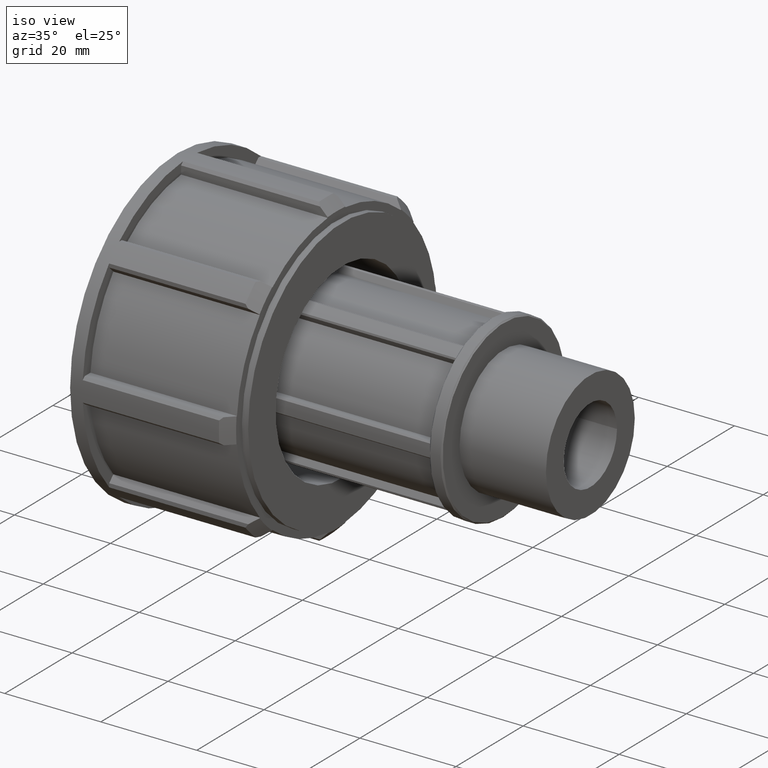
[diagram: clean part render]
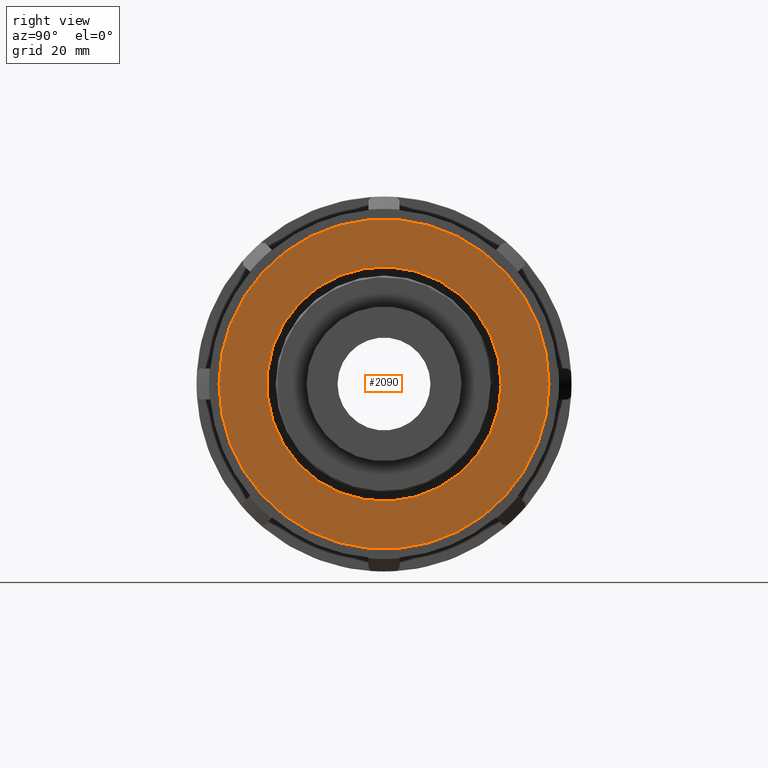
[diagram: tour spotlight — one face highlighted and labeled with its STEP entity id]
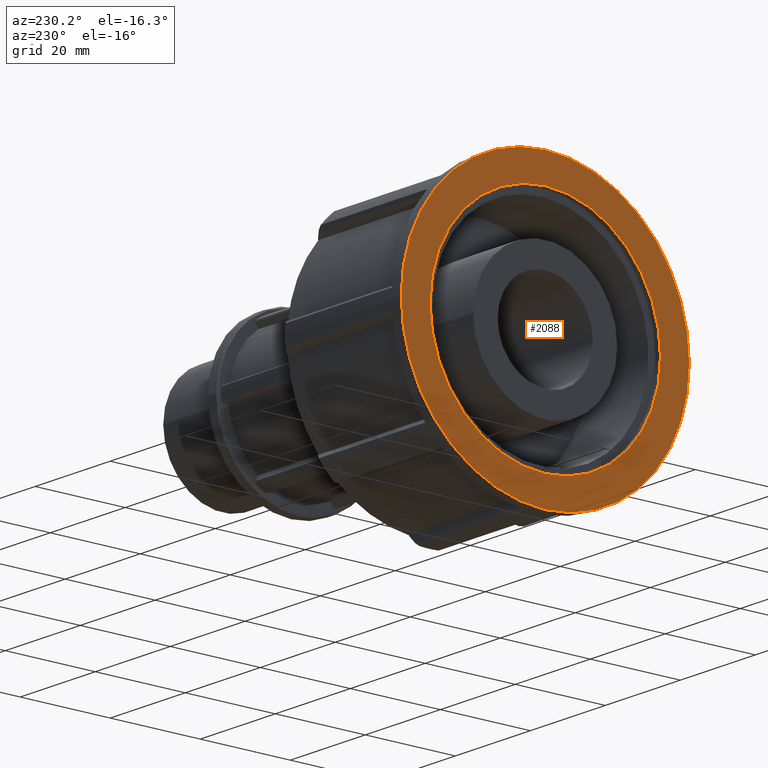
[diagram: tour spotlight — one face highlighted and labeled with its STEP entity id]
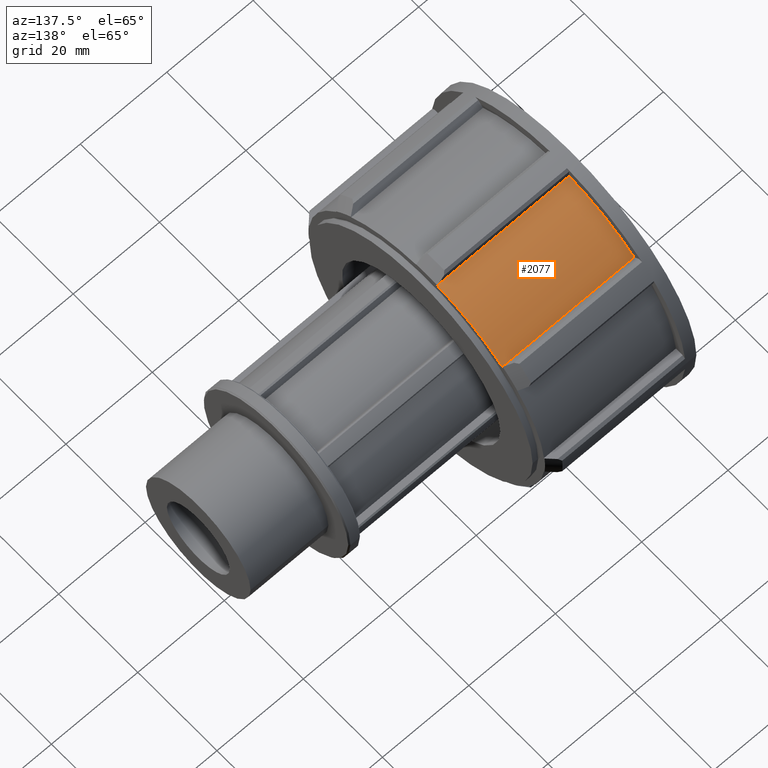
[diagram: tour spotlight — one face highlighted and labeled with its STEP entity id]
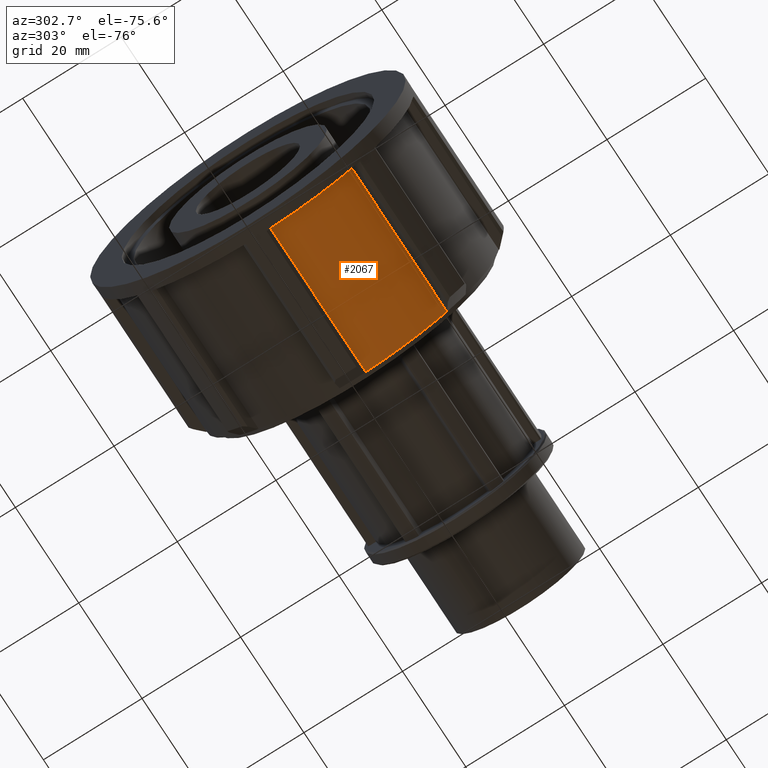
[diagram: tour spotlight — one face highlighted and labeled with its STEP entity id]
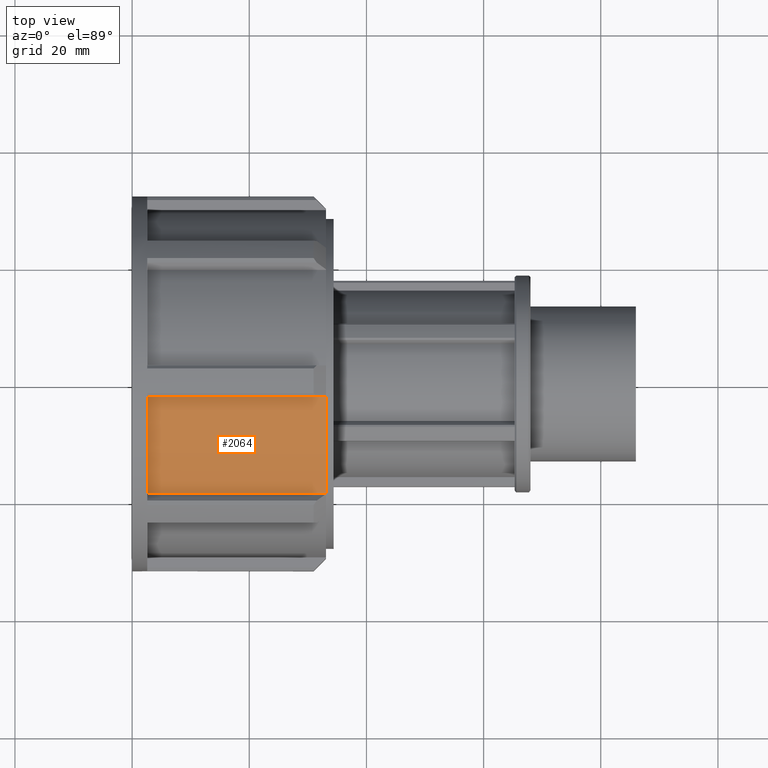
[diagram: tour spotlight — one face highlighted and labeled with its STEP entity id]
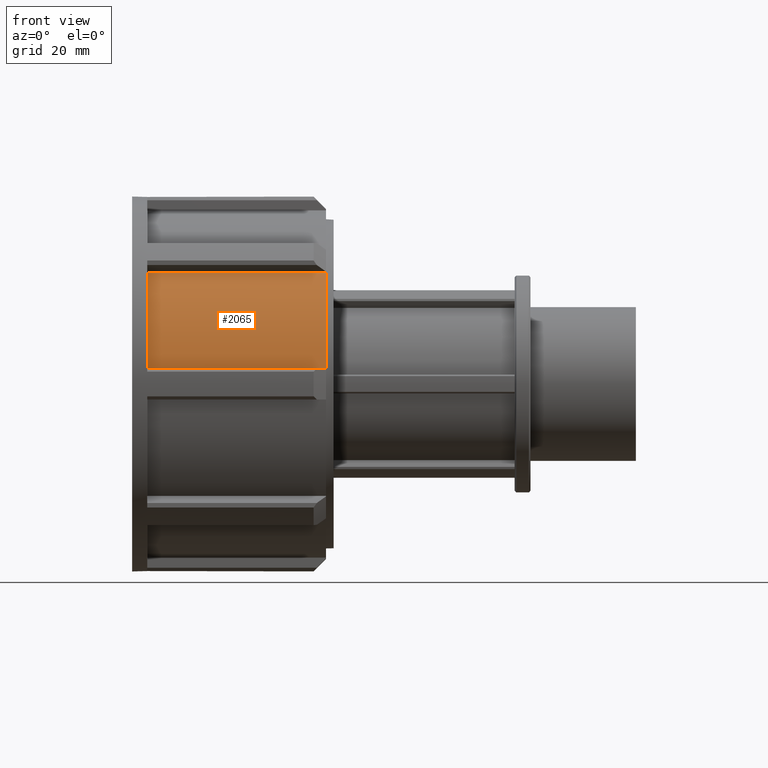
[diagram: tour spotlight — one face highlighted and labeled with its STEP entity id]
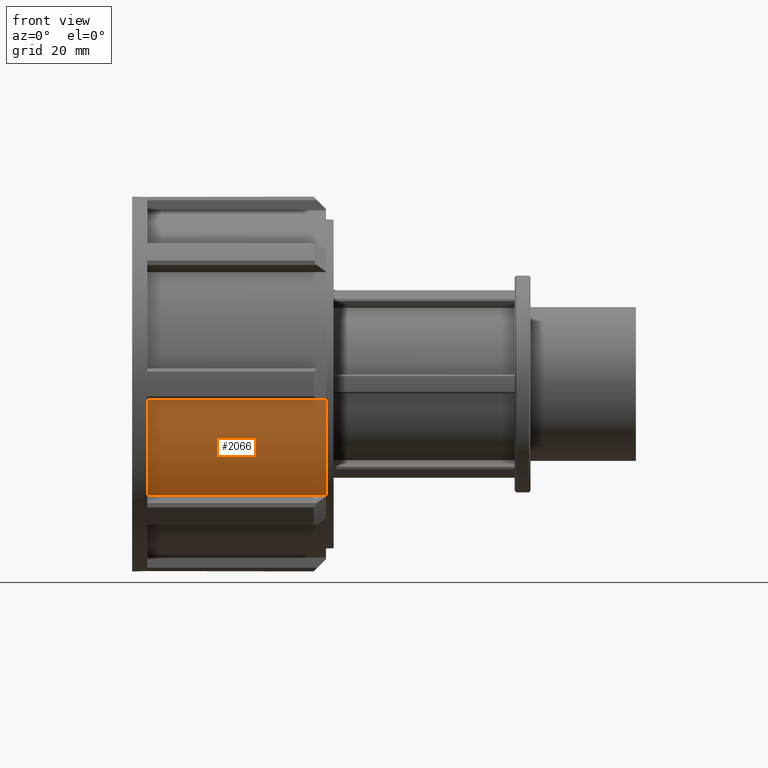
[diagram: tour spotlight — one face highlighted and labeled with its STEP entity id]
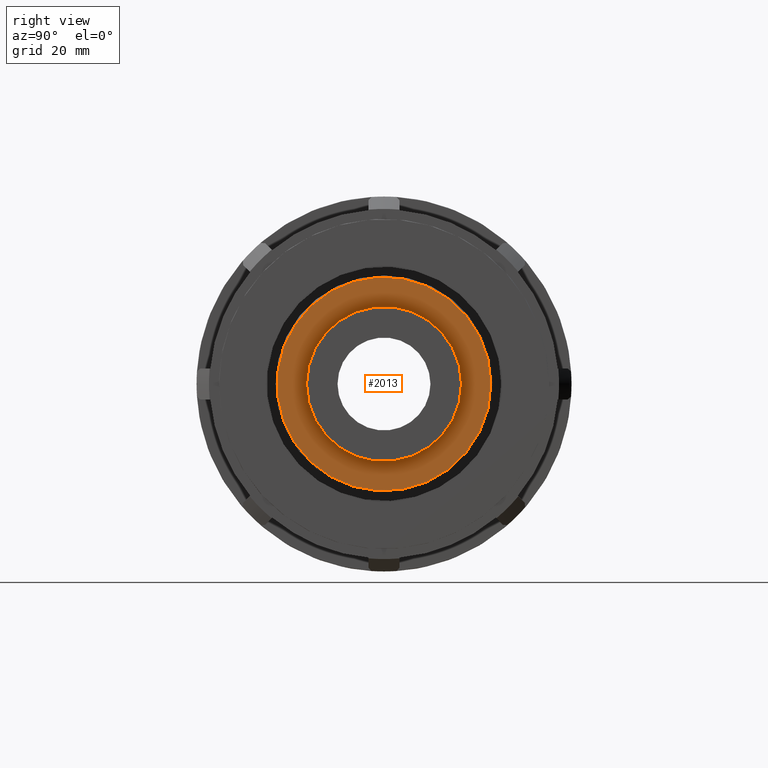
[diagram: tour spotlight — one face highlighted and labeled with its STEP entity id]
A machine part: a face-by-face anatomy tour. The part has 115 B-rep faces; the first image is the clean iso view, then the 8 largest visible faces are spotlighted one at a time (largest first), each with its STEP entity span.

Face 1 — right view, entity #2090. In plain terms, the highlighted planar face has unit normal (1, 0, 0).
Definition (entity closure, byte-faithful):
#77=FACE_BOUND('',#442,.T.);
#163=CIRCLE('',#2289,28.16);
#164=CIRCLE('',#2291,20.);
#307=FACE_OUTER_BOUND('',#441,.T.);
#441=EDGE_LOOP('',(#1897));
#442=EDGE_LOOP('',(#1898));
#1011=VERTEX_POINT('',#3550);
#1012=VERTEX_POINT('',#3553);
#1308=EDGE_CURVE('',#1011,#1011,#163,.T.);
#1309=EDGE_CURVE('',#1012,#1012,#164,.T.);
#1897=ORIENTED_EDGE('',*,*,#1308,.T.);
#1898=ORIENTED_EDGE('',*,*,#1309,.F.);
#1977=PLANE('',#2290);
#2090=ADVANCED_FACE('',(#307,#77),#1977,.T.);
#2289=AXIS2_PLACEMENT_3D('',#3551,#2864,#2865);
#2290=AXIS2_PLACEMENT_3D('',#3552,#2866,#2867);
#2291=AXIS2_PLACEMENT_3D('',#3554,#2868,#2869);
#2864=DIRECTION('center_axis',(1.,0.,0.));
#2865=DIRECTION('ref_axis',(0.,0.,-1.));
#2866=DIRECTION('center_axis',(1.,0.,0.));
#2867=DIRECTION('ref_axis',(0.,0.,-1.));
#2868=DIRECTION('center_axis',(1.,0.,0.));
#2869=DIRECTION('ref_axis',(0.,0.,-1.));
#3550=CARTESIAN_POINT('',(34.4,28.16,0.));
#3551=CARTESIAN_POINT('Origin',(34.4,0.,0.));
#3552=CARTESIAN_POINT('Origin',(34.4,20.,0.));
#3553=CARTESIAN_POINT('',(34.4,20.,0.));
#3554=CARTESIAN_POINT('Origin',(34.4,0.,0.));

Face 2 — auxiliary view, entity #2088. In plain terms, the highlighted planar face has unit normal (-1, 0, 0).
Definition (entity closure, byte-faithful):
#75=FACE_BOUND('',#438,.T.);
#113=CIRCLE('',#2173,32.);
#162=CIRCLE('',#2286,25.6);
#305=FACE_OUTER_BOUND('',#437,.T.);
#437=EDGE_LOOP('',(#1893));
#438=EDGE_LOOP('',(#1894));
#895=VERTEX_POINT('',#3141);
#1010=VERTEX_POINT('',#3546);
#1137=EDGE_CURVE('',#895,#895,#113,.T.);
#1307=EDGE_CURVE('',#1010,#1010,#162,.T.);
#1893=ORIENTED_EDGE('',*,*,#1137,.F.);
#1894=ORIENTED_EDGE('',*,*,#1307,.T.);
#1976=PLANE('',#2287);
#2088=ADVANCED_FACE('',(#305,#75),#1976,.T.);
#2173=AXIS2_PLACEMENT_3D('',#3142,#2539,#2540);
#2286=AXIS2_PLACEMENT_3D('',#3547,#2858,#2859);
#2287=AXIS2_PLACEMENT_3D('',#3548,#2860,#2861);
#2539=DIRECTION('center_axis',(1.,0.,0.));
#2540=DIRECTION('ref_axis',(0.,0.,-1.));
#2858=DIRECTION('center_axis',(1.,0.,0.));
#2859=DIRECTION('ref_axis',(0.,0.,-1.));
#2860=DIRECTION('center_axis',(-1.,0.,0.));
#2861=DIRECTION('ref_axis',(0.,0.,1.));
#3141=CARTESIAN_POINT('',(0.,32.,0.));
#3142=CARTESIAN_POINT('Origin',(0.,0.,0.));
#3546=CARTESIAN_POINT('',(0.,25.6,0.));
#3547=CARTESIAN_POINT('Origin',(0.,0.,0.));
#3548=CARTESIAN_POINT('Origin',(0.,32.,0.));

Face 3 — auxiliary view, entity #2077. In plain terms, the highlighted cylindrical surface (partial cylindrical patch) has radius 29.76 mm, axis along (1, 0, 0).
Definition (entity closure, byte-faithful):
#149=CIRCLE('',#2257,29.76);
#152=CIRCLE('',#2266,29.76);
#187=CYLINDRICAL_SURFACE('',#2265,29.76);
#294=FACE_OUTER_BOUND('',#417,.T.);
#417=EDGE_LOOP('',(#1865,#1866,#1867,#1868));
#554=LINE('',#3210,#734);
#627=LINE('',#3514,#807);
#734=VECTOR('',#2593,30.53);
#807=VECTOR('',#2814,30.53);
#926=VERTEX_POINT('',#3207);
#927=VERTEX_POINT('',#3209);
#993=VERTEX_POINT('',#3481);
#1000=VERTEX_POINT('',#3513);
#1171=EDGE_CURVE('',#927,#926,#554,.T.);
#1283=EDGE_CURVE('',#927,#993,#149,.T.);
#1295=EDGE_CURVE('',#1000,#993,#627,.T.);
#1297=EDGE_CURVE('',#926,#1000,#152,.T.);
#1865=ORIENTED_EDGE('',*,*,#1171,.T.);
#1866=ORIENTED_EDGE('',*,*,#1297,.T.);
#1867=ORIENTED_EDGE('',*,*,#1295,.T.);
#1868=ORIENTED_EDGE('',*,*,#1283,.F.);
#2077=ADVANCED_FACE('',(#294),#187,.T.);
#2257=AXIS2_PLACEMENT_3D('',#3482,#2793,#2794);
#2265=AXIS2_PLACEMENT_3D('',#3516,#2816,#2817);
#2266=AXIS2_PLACEMENT_3D('',#3517,#2818,#2819);
#2593=DIRECTION('',(-1.,0.,0.));
#2793=DIRECTION('center_axis',(1.,0.,0.));
#2794=DIRECTION('ref_axis',(0.,0.,-1.));
#2814=DIRECTION('',(1.,0.,0.));
#2816=DIRECTION('center_axis',(1.,0.,0.));
#2817=DIRECTION('ref_axis',(0.,1.,0.));
#2818=DIRECTION('center_axis',(1.,0.,0.));
#2819=DIRECTION('ref_axis',(0.,0.,-1.));
#3207=CARTESIAN_POINT('',(2.58,19.0906149025855,22.8299369828561));
#3209=CARTESIAN_POINT('',(33.11,19.0906149025854,22.8299369828561));
#3210=CARTESIAN_POINT('',(17.845,19.0906149025855,22.8299369828562));
#3481=CARTESIAN_POINT('',(33.11,2.64409999999999,29.6423065092783));
#3482=CARTESIAN_POINT('Origin',(33.11,0.,0.));
#3513=CARTESIAN_POINT('',(2.58000000000001,2.64409999999999,29.6423065092783));
#3514=CARTESIAN_POINT('',(17.845,2.64409999999999,29.6423065092783));
#3516=CARTESIAN_POINT('Origin',(17.845,0.,0.));
#3517=CARTESIAN_POINT('Origin',(2.58000000000001,0.,0.));

Face 4 — auxiliary view, entity #2067. In plain terms, the highlighted cylindrical surface (partial cylindrical patch) has radius 29.76 mm, axis along (1, 0, 0).
Definition (entity closure, byte-faithful):
#138=CIRCLE('',#2235,29.76);
#145=CIRCLE('',#2249,29.76);
#183=CYLINDRICAL_SURFACE('',#2248,29.76);
#284=FACE_OUTER_BOUND('',#406,.T.);
#406=EDGE_LOOP('',(#1792,#1793,#1794,#1795));
#582=LINE('',#3338,#762);
#611=LINE('',#3432,#791);
#762=VECTOR('',#2661,30.53);
#791=VECTOR('',#2720,30.53);
#958=VERTEX_POINT('',#3335);
#959=VERTEX_POINT('',#3337);
#984=VERTEX_POINT('',#3429);
#985=VERTEX_POINT('',#3431);
#1219=EDGE_CURVE('',#959,#958,#582,.T.);
#1258=EDGE_CURVE('',#985,#984,#611,.T.);
#1271=EDGE_CURVE('',#958,#985,#138,.T.);
#1279=EDGE_CURVE('',#959,#984,#145,.T.);
#1792=ORIENTED_EDGE('',*,*,#1258,.T.);
#1793=ORIENTED_EDGE('',*,*,#1279,.F.);
#1794=ORIENTED_EDGE('',*,*,#1219,.T.);
#1795=ORIENTED_EDGE('',*,*,#1271,.T.);
#2067=ADVANCED_FACE('',(#284),#183,.T.);
#2235=AXIS2_PLACEMENT_3D('',#3457,#2748,#2749);
#2248=AXIS2_PLACEMENT_3D('',#3472,#2775,#2776);
#2249=AXIS2_PLACEMENT_3D('',#3473,#2777,#2778);
#2661=DIRECTION('',(-1.,0.,0.));
#2720=DIRECTION('',(1.,0.,0.));
#2748=DIRECTION('center_axis',(1.,0.,0.));
#2749=DIRECTION('ref_axis',(0.,0.,-1.));
#2775=DIRECTION('center_axis',(1.,0.,0.));
#2776=DIRECTION('ref_axis',(0.,1.,0.));
#2777=DIRECTION('center_axis',(1.,0.,0.));
#2778=DIRECTION('ref_axis',(0.,0.,-1.));
#3335=CARTESIAN_POINT('',(2.58,-19.0906149025854,-22.8299369828562));
#3337=CARTESIAN_POINT('',(33.11,-19.0906149025854,-22.8299369828561));
#3338=CARTESIAN_POINT('',(17.845,-19.0906149025854,-22.8299369828562));
#3429=CARTESIAN_POINT('',(33.11,-2.6441,-29.6423065092783));
#3431=CARTESIAN_POINT('',(2.58,-2.6441,-29.6423065092783));
#3432=CARTESIAN_POINT('',(17.845,-2.6441,-29.6423065092783));
#3457=CARTESIAN_POINT('Origin',(2.58000000000001,0.,0.));
#3472=CARTESIAN_POINT('Origin',(17.845,0.,0.));
#3473=CARTESIAN_POINT('Origin',(33.11,0.,0.));

Face 5 — top view, entity #2064. In plain terms, the highlighted cylindrical surface (partial cylindrical patch) has radius 29.76 mm, axis along (1, 0, 0).
Definition (entity closure, byte-faithful):
#135=CIRCLE('',#2229,29.76);
#142=CIRCLE('',#2243,29.76);
#180=CYLINDRICAL_SURFACE('',#2242,29.76);
#281=FACE_OUTER_BOUND('',#403,.T.);
#403=EDGE_LOOP('',(#1780,#1781,#1782,#1783));
#599=LINE('',#3408,#779);
#621=LINE('',#3467,#801);
#779=VECTOR('',#2700,30.53);
#801=VECTOR('',#2766,30.53);
#976=VERTEX_POINT('',#3405);
#977=VERTEX_POINT('',#3407);
#990=VERTEX_POINT('',#3447);
#992=VERTEX_POINT('',#3465);
#1246=EDGE_CURVE('',#977,#976,#599,.T.);
#1266=EDGE_CURVE('',#990,#977,#135,.T.);
#1275=EDGE_CURVE('',#992,#976,#142,.T.);
#1276=EDGE_CURVE('',#992,#990,#621,.T.);
#1780=ORIENTED_EDGE('',*,*,#1246,.T.);
#1781=ORIENTED_EDGE('',*,*,#1275,.F.);
#1782=ORIENTED_EDGE('',*,*,#1276,.T.);
#1783=ORIENTED_EDGE('',*,*,#1266,.T.);
#2064=ADVANCED_FACE('',(#281),#180,.T.);
#2229=AXIS2_PLACEMENT_3D('',#3448,#2734,#2735);
#2242=AXIS2_PLACEMENT_3D('',#3464,#2762,#2763);
#2243=AXIS2_PLACEMENT_3D('',#3466,#2764,#2765);
#2700=DIRECTION('',(1.,0.,0.));
#2734=DIRECTION('center_axis',(1.,0.,0.));
#2735=DIRECTION('ref_axis',(0.,0.,-1.));
#2762=DIRECTION('center_axis',(1.,0.,0.));
#2763=DIRECTION('ref_axis',(0.,1.,0.));
#2764=DIRECTION('center_axis',(1.,0.,0.));
#2765=DIRECTION('ref_axis',(0.,0.,-1.));
#2766=DIRECTION('',(-1.,0.,0.));
#3405=CARTESIAN_POINT('',(33.11,-19.0906149025854,22.8299369828561));
#3407=CARTESIAN_POINT('',(2.58,-19.0906149025854,22.8299369828561));
#3408=CARTESIAN_POINT('',(17.845,-19.0906149025854,22.8299369828562));
#3447=CARTESIAN_POINT('',(2.58000000000001,-2.6441,29.6423065092783));
#3448=CARTESIAN_POINT('Origin',(2.58000000000001,0.,0.));
#3464=CARTESIAN_POINT('Origin',(17.845,0.,0.));
#3465=CARTESIAN_POINT('',(33.11,-2.6441,29.6423065092783));
#3466=CARTESIAN_POINT('Origin',(33.11,0.,0.));
#3467=CARTESIAN_POINT('',(17.845,-2.6441,29.6423065092783));

Face 6 — front view, entity #2065. In plain terms, the highlighted cylindrical surface (partial cylindrical patch) has radius 29.76 mm, axis along (1, 0, 0).
Definition (entity closure, byte-faithful):
#136=CIRCLE('',#2231,29.76);
#143=CIRCLE('',#2245,29.76);
#181=CYLINDRICAL_SURFACE('',#2244,29.76);
#282=FACE_OUTER_BOUND('',#404,.T.);
#404=EDGE_LOOP('',(#1784,#1785,#1786,#1787));
#596=LINE('',#3402,#776);
#617=LINE('',#3444,#797);
#776=VECTOR('',#2695,30.53);
#797=VECTOR('',#2730,30.53);
#974=VERTEX_POINT('',#3399);
#975=VERTEX_POINT('',#3401);
#988=VERTEX_POINT('',#3441);
#989=VERTEX_POINT('',#3443);
#1243=EDGE_CURVE('',#975,#974,#596,.T.);
#1264=EDGE_CURVE('',#989,#988,#617,.T.);
#1269=EDGE_CURVE('',#974,#989,#136,.T.);
#1277=EDGE_CURVE('',#975,#988,#143,.T.);
#1784=ORIENTED_EDGE('',*,*,#1264,.T.);
#1785=ORIENTED_EDGE('',*,*,#1277,.F.);
#1786=ORIENTED_EDGE('',*,*,#1243,.T.);
#1787=ORIENTED_EDGE('',*,*,#1269,.T.);
#2065=ADVANCED_FACE('',(#282),#181,.T.);
#2231=AXIS2_PLACEMENT_3D('',#3453,#2740,#2741);
#2244=AXIS2_PLACEMENT_3D('',#3468,#2767,#2768);
#2245=AXIS2_PLACEMENT_3D('',#3469,#2769,#2770);
#2695=DIRECTION('',(-1.,0.,0.));
#2730=DIRECTION('',(1.,0.,0.));
#2740=DIRECTION('center_axis',(1.,0.,0.));
#2741=DIRECTION('ref_axis',(0.,0.,-1.));
#2767=DIRECTION('center_axis',(1.,0.,0.));
#2768=DIRECTION('ref_axis',(0.,1.,0.));
#2769=DIRECTION('center_axis',(1.,0.,0.));
#2770=DIRECTION('ref_axis',(0.,0.,-1.));
#3399=CARTESIAN_POINT('',(2.58,-22.8299369828562,19.0906149025854));
#3401=CARTESIAN_POINT('',(33.11,-22.8299369828561,19.0906149025854));
#3402=CARTESIAN_POINT('',(17.845,-22.8299369828562,19.0906149025854));
#3441=CARTESIAN_POINT('',(33.11,-29.6423065092783,2.64409999999999));
#3443=CARTESIAN_POINT('',(2.58,-29.6423065092783,2.64409999999999));
#3444=CARTESIAN_POINT('',(17.845,-29.6423065092783,2.64409999999999));
#3453=CARTESIAN_POINT('Origin',(2.58000000000001,0.,0.));
#3468=CARTESIAN_POINT('Origin',(17.845,0.,0.));
#3469=CARTESIAN_POINT('Origin',(33.11,0.,0.));

Face 7 — front view, entity #2066. In plain terms, the highlighted cylindrical surface (partial cylindrical patch) has radius 29.76 mm, axis along (1, 0, 0).
Definition (entity closure, byte-faithful):
#137=CIRCLE('',#2233,29.76);
#144=CIRCLE('',#2247,29.76);
#182=CYLINDRICAL_SURFACE('',#2246,29.76);
#283=FACE_OUTER_BOUND('',#405,.T.);
#405=EDGE_LOOP('',(#1788,#1789,#1790,#1791));
#589=LINE('',#3370,#769);
#614=LINE('',#3438,#794);
#769=VECTOR('',#2678,30.53);
#794=VECTOR('',#2725,30.53);
#966=VERTEX_POINT('',#3367);
#967=VERTEX_POINT('',#3369);
#986=VERTEX_POINT('',#3435);
#987=VERTEX_POINT('',#3437);
#1231=EDGE_CURVE('',#967,#966,#589,.T.);
#1261=EDGE_CURVE('',#987,#986,#614,.T.);
#1270=EDGE_CURVE('',#966,#987,#137,.T.);
#1278=EDGE_CURVE('',#967,#986,#144,.T.);
#1788=ORIENTED_EDGE('',*,*,#1261,.T.);
#1789=ORIENTED_EDGE('',*,*,#1278,.F.);
#1790=ORIENTED_EDGE('',*,*,#1231,.T.);
#1791=ORIENTED_EDGE('',*,*,#1270,.T.);
#2066=ADVANCED_FACE('',(#283),#182,.T.);
#2233=AXIS2_PLACEMENT_3D('',#3455,#2744,#2745);
#2246=AXIS2_PLACEMENT_3D('',#3470,#2771,#2772);
#2247=AXIS2_PLACEMENT_3D('',#3471,#2773,#2774);
#2678=DIRECTION('',(-1.,0.,0.));
#2725=DIRECTION('',(1.,0.,0.));
#2744=DIRECTION('center_axis',(1.,0.,0.));
#2745=DIRECTION('ref_axis',(0.,0.,-1.));
#2771=DIRECTION('center_axis',(1.,0.,0.));
#2772=DIRECTION('ref_axis',(0.,1.,0.));
#2773=DIRECTION('center_axis',(1.,0.,0.));
#2774=DIRECTION('ref_axis',(0.,0.,-1.));
#3367=CARTESIAN_POINT('',(2.58,-29.6423065092783,-2.6441));
#3369=CARTESIAN_POINT('',(33.11,-29.6423065092783,-2.6441));
#3370=CARTESIAN_POINT('',(17.845,-29.6423065092783,-2.6441));
#3435=CARTESIAN_POINT('',(33.11,-22.8299369828561,-19.0906149025854));
#3437=CARTESIAN_POINT('',(2.58,-22.8299369828561,-19.0906149025854));
#3438=CARTESIAN_POINT('',(17.845,-22.8299369828562,-19.0906149025854));
#3455=CARTESIAN_POINT('Origin',(2.58000000000001,0.,0.));
#3470=CARTESIAN_POINT('Origin',(17.845,0.,0.));
#3471=CARTESIAN_POINT('Origin',(33.11,0.,0.));

Face 8 — right view, entity #2013. In plain terms, the highlighted planar face has unit normal (1, 0, 0).
Definition (entity closure, byte-faithful):
#61=FACE_BOUND('',#349,.T.);
#106=CIRCLE('',#2154,18.24429);
#108=CIRCLE('',#2158,13.2205);
#230=FACE_OUTER_BOUND('',#348,.T.);
#348=EDGE_LOOP('',(#1476));
#349=EDGE_LOOP('',(#1477));
#879=VERTEX_POINT('',#3083);
#881=VERTEX_POINT('',#3089);
#1115=EDGE_CURVE('',#879,#879,#106,.T.);
#1117=EDGE_CURVE('',#881,#881,#108,.T.);
#1476=ORIENTED_EDGE('',*,*,#1115,.F.);
#1477=ORIENTED_EDGE('',*,*,#1117,.F.);
#1926=PLANE('',#2157);
#2013=ADVANCED_FACE('',(#230,#61),#1926,.T.);
#2154=AXIS2_PLACEMENT_3D('',#3084,#2490,#2491);
#2157=AXIS2_PLACEMENT_3D('',#3088,#2496,#2497);
#2158=AXIS2_PLACEMENT_3D('',#3090,#2498,#2499);
#2490=DIRECTION('center_axis',(-1.,0.,0.));
#2491=DIRECTION('ref_axis',(0.,-1.,0.));
#2496=DIRECTION('center_axis',(1.,0.,0.));
#2497=DIRECTION('ref_axis',(0.,0.,-1.));
#2498=DIRECTION('center_axis',(1.,0.,0.));
#2499=DIRECTION('ref_axis',(0.,0.,-1.));
#3083=CARTESIAN_POINT('',(68.,18.24429,-2.23428113512161E-15));
#3084=CARTESIAN_POINT('Origin',(68.,0.,0.));
#3088=CARTESIAN_POINT('Origin',(68.,13.2205,0.));
#3089=CARTESIAN_POINT('',(68.,13.2205,0.));
#3090=CARTESIAN_POINT('Origin',(68.,0.,0.));